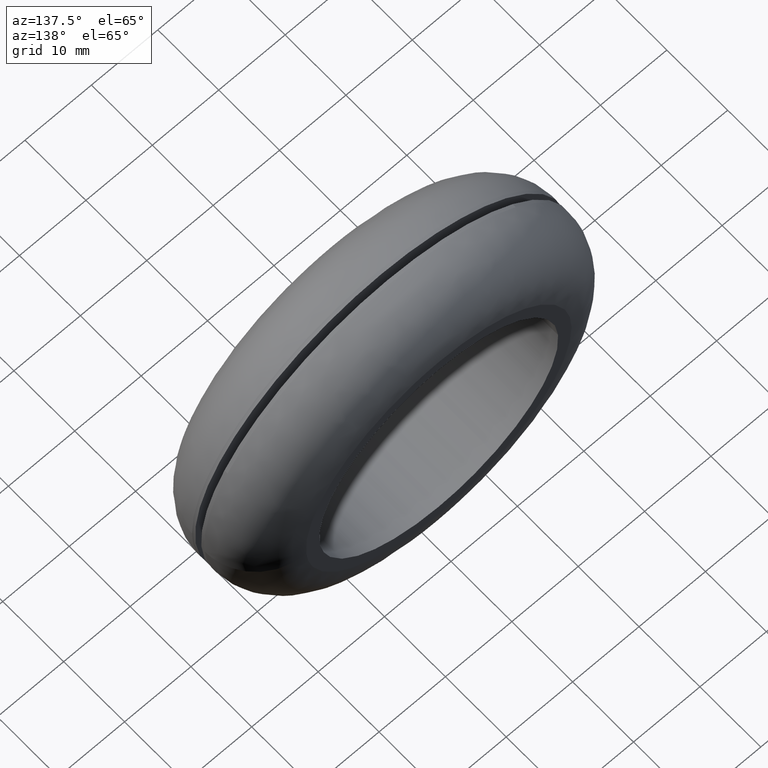
[diagram: clean part render]
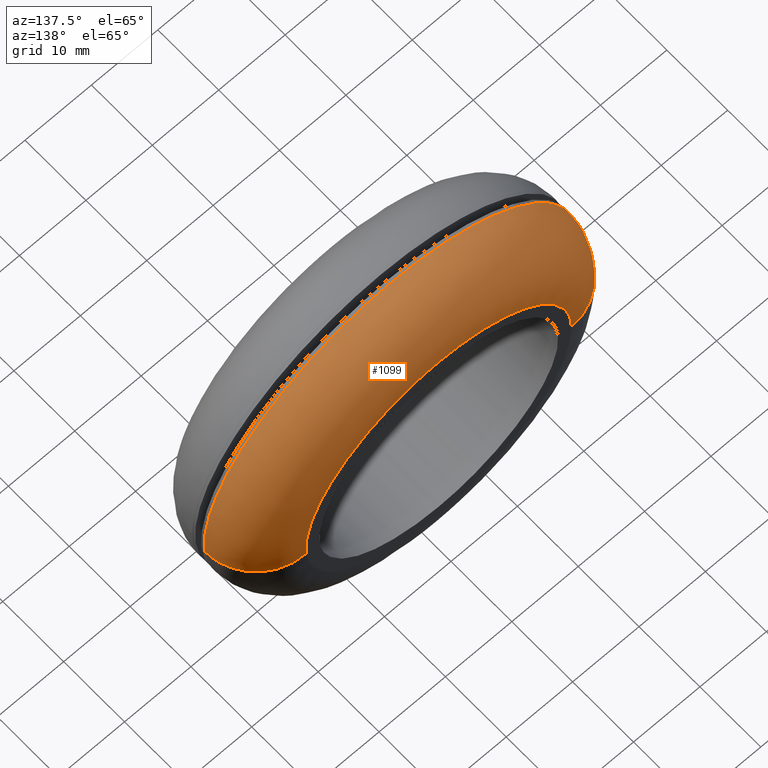
[diagram: same view with one face highlighted and labeled with its STEP entity id]
A machine part, auxiliary view. The second image highlights one B-rep face of the part: STEP entity #1099.
In plain terms, the highlighted face is a freeform B-spline surface patch.
Its self-contained STEP definition (entity closure, byte-faithful):
#464=CARTESIAN_POINT('',(24.498502475703919,9.999992431047673,13.558147972626561));
#465=VERTEX_POINT('',#464);
#466=CARTESIAN_POINT('',(0.0,10.0,28.0));
#467=VERTEX_POINT('',#466);
#468=CARTESIAN_POINT('',(24.498502475703926,9.999992431047673,13.558147972626557));
#469=CARTESIAN_POINT('',(16.505982648014054,9.999996875512034,28.000000000000320));
#470=CARTESIAN_POINT('',(0.0,10.0,28.0));
#478=(BOUNDED_CURVE()B_SPLINE_CURVE(2,(#468,#469,#470),.UNSPECIFIED.,.F.,.U.)B_SPLINE_CURVE_WITH_KNOTS((3,3),(0.332484260513067,0.500000000000000),.UNSPECIFIED.)CURVE()GEOMETRIC_REPRESENTATION_ITEM()RATIONAL_B_SPLINE_CURVE((0.870495160132629,0.803743103439025,1.0))REPRESENTATION_ITEM(''));
#479=EDGE_CURVE('',#465,#467,#478,.T.);
#481=CARTESIAN_POINT('',(-18.916524673993550,9.999994661897787,20.643766474604121));
#482=VERTEX_POINT('',#481);
#483=CARTESIAN_POINT('',(0.0,10.0,28.0));
#484=CARTESIAN_POINT('',(-10.888603602444862,9.999997779890196,27.999999999999947));
#485=CARTESIAN_POINT('',(-18.916524673993546,9.999994661897787,20.643766474604117));
#493=(BOUNDED_CURVE()B_SPLINE_CURVE(2,(#483,#484,#485),.UNSPECIFIED.,.F.,.U.)B_SPLINE_CURVE_WITH_KNOTS((3,3),(0.500000000000000,0.618415200753256),.UNSPECIFIED.)CURVE()GEOMETRIC_REPRESENTATION_ITEM()RATIONAL_B_SPLINE_CURVE((1.0,0.861267962779751,0.853959781866254))REPRESENTATION_ITEM(''));
#494=EDGE_CURVE('',#467,#482,#493,.T.);
#563=CARTESIAN_POINT('',(27.931839311277209,9.999988632645632,-1.952524695885787));
#564=VERTEX_POINT('',#563);
#565=CARTESIAN_POINT('',(27.931839311277212,9.999988632645632,-1.952524695885788));
#566=CARTESIAN_POINT('',(27.999999999983434,9.999988817671708,-0.977452058754858));
#567=CARTESIAN_POINT('',(27.999999999983729,9.999989016083207,1.137140E-012));
#568=CARTESIAN_POINT('',(27.999999999985899,9.999990483937195,7.231218517312033));
#569=CARTESIAN_POINT('',(24.498502475703926,9.999992431047673,13.558147972626557));
#577=(BOUNDED_CURVE()B_SPLINE_CURVE(2,(#565,#566,#567,#568,#569),.UNSPECIFIED.,.F.,.U.)B_SPLINE_CURVE_WITH_KNOTS((3,2,3),(0.237833725622559,0.250000000000000,0.332484260513067),.UNSPECIFIED.)CURVE()GEOMETRIC_REPRESENTATION_ITEM()RATIONAL_B_SPLINE_CURVE((0.972879959060353,0.985746322946495,1.0,0.903363677747522,0.870495160132629))REPRESENTATION_ITEM(''));
#578=EDGE_CURVE('',#564,#465,#577,.T.);
#614=CARTESIAN_POINT('',(-27.997789473912182,9.999988724574578,0.351830318831164));
#615=VERTEX_POINT('',#614);
#616=CARTESIAN_POINT('',(-18.916524673993546,9.999994661897787,20.643766474604117));
#617=CARTESIAN_POINT('',(-27.845611647233294,9.999991193900494,12.461766632005810));
#618=CARTESIAN_POINT('',(-27.997789473912178,9.999988724574578,0.351830318831164));
#626=(BOUNDED_CURVE()B_SPLINE_CURVE(2,(#616,#617,#618),.UNSPECIFIED.,.F.,.U.)B_SPLINE_CURVE_WITH_KNOTS((3,3),(0.618415200753256,0.747784414000057),.UNSPECIFIED.)CURVE()GEOMETRIC_REPRESENTATION_ITEM()RATIONAL_B_SPLINE_CURVE((0.853959781866254,0.845975556791852,0.994854567414644))REPRESENTATION_ITEM(''));
#627=EDGE_CURVE('',#482,#615,#626,.T.);
#1004=CARTESIAN_POINT('',(19.396369496455950,17.980634826789895,-1.355871474058523));
#1005=CARTESIAN_POINT('',(19.435173918076199,17.980634826789892,-0.800756247989376));
#1006=CARTESIAN_POINT('',(19.442166540443480,17.980634826789895,-0.244330331461837));
#1007=CARTESIAN_POINT('',(19.686496871905316,17.980634826789899,19.197836208981627));
#1008=CARTESIAN_POINT('',(0.244330331461838,17.980634826789895,19.442166540443480));
#1009=CARTESIAN_POINT('',(-19.197836208981627,17.980634826789899,19.686496871905316));
#1010=CARTESIAN_POINT('',(-19.442166540443480,17.980634826789895,0.244330331461840));
#1011=CARTESIAN_POINT('',(28.550639918953333,18.620299706625694,-1.995785770079217));
#1012=CARTESIAN_POINT('',(28.607758395127220,18.620299706625691,-1.178679510275058));
#1013=CARTESIAN_POINT('',(28.618051241081414,18.620299706625691,-0.359643969255176));
#1014=CARTESIAN_POINT('',(28.977695210336577,18.620299706625694,28.258407271826236));
#1015=CARTESIAN_POINT('',(0.359643969255177,18.620299706625691,28.618051241081414));
#1016=CARTESIAN_POINT('',(-28.258407271826236,18.620299706625694,28.977695210336577));
#1017=CARTESIAN_POINT('',(-28.618051241081414,18.620299706625691,0.359643969255179));
#1018=CARTESIAN_POINT('',(27.912520217374755,9.443691296079329,-1.951179056407197));
#1019=CARTESIAN_POINT('',(27.968362069799600,9.443691296079328,-1.152335490684303));
#1020=CARTESIAN_POINT('',(27.978424865996317,9.443691296079329,-0.351605764052521));
#1021=CARTESIAN_POINT('',(28.330030630048842,9.443691296079328,27.626819101943795));
#1022=CARTESIAN_POINT('',(0.351605764052523,9.443691296079329,27.978424865996317));
#1023=CARTESIAN_POINT('',(-27.626819101943795,9.443691296079328,28.330030630048842));
#1024=CARTESIAN_POINT('',(-27.978424865996317,9.443691296079329,0.351605764052525));
#1032=(BOUNDED_SURFACE()B_SPLINE_SURFACE(2,2,((#1004,#1011,#1018),(#1005,#1012,#1019),(#1006,#1013,#1020),(#1007,#1014,#1021),(#1008,#1015,#1022),(#1009,#1016,#1023),(#1010,#1017,#1024)),.UNSPECIFIED.,.F.,.F.,.U.)B_SPLINE_SURFACE_WITH_KNOTS((3,2,2,3),(3,3),(0.0,1.854391531945382,48.214224042761508,94.574056553577634),(0.0,14.579007301381450),.UNSPECIFIED.)GEOMETRIC_REPRESENTATION_ITEM()RATIONAL_B_SPLINE_SURFACE(((0.895729808500744,0.587799884252866,0.895730342212187),(0.905606566936954,0.594281255544188,0.905607106533363),(0.916342173042551,0.601326223754876,0.916342719035661),(0.647951764445604,0.425201850522372,0.647952150521035),(0.916342173042551,0.601326223754876,0.916342719035661),(0.647951764445604,0.425201850522372,0.647952150521035),(0.916342173042551,0.601326223754876,0.916342719035661)))REPRESENTATION_ITEM('')SURFACE());
#1033=ORIENTED_EDGE('',*,*,#479,.F.);
#1034=ORIENTED_EDGE('',*,*,#578,.F.);
#1035=CARTESIAN_POINT('',(19.951313477026670,18.0,-1.394665031562556));
#1036=VERTEX_POINT('',#1035);
#1037=CARTESIAN_POINT('',(19.951313477026677,18.0,-1.394665031562556));
#1038=CARTESIAN_POINT('',(27.931850428987570,17.999999999557520,-1.952528662693935));
#1039=CARTESIAN_POINT('',(27.931839311277209,9.999988632645632,-1.952524695885787));
#1047=(BOUNDED_CURVE()B_SPLINE_CURVE(2,(#1037,#1038,#1039),.UNSPECIFIED.,.F.,.U.)B_SPLINE_CURVE_WITH_KNOTS((3,3),(-1.734750791600929,-0.265247731871690),.UNSPECIFIED.)CURVE()GEOMETRIC_REPRESENTATION_ITEM()RATIONAL_B_SPLINE_CURVE((0.869031711855350,0.614497960802621,0.869032223356742))REPRESENTATION_ITEM(''));
#1048=EDGE_CURVE('',#1036,#564,#1047,.T.);
#1049=ORIENTED_EDGE('',*,*,#1048,.F.);
#1050=CARTESIAN_POINT('',(0.0,18.0,20.0));
#1051=VERTEX_POINT('',#1050);
#1052=CARTESIAN_POINT('',(19.951313477026673,18.000000000000004,-1.394665031562555));
#1053=CARTESIAN_POINT('',(20.0,18.0,-0.698182317532665));
#1054=CARTESIAN_POINT('',(20.0,18.0,-4.286122E-016));
#1055=CARTESIAN_POINT('',(19.999999999999996,18.000000000000007,19.999999999999996));
#1056=CARTESIAN_POINT('',(0.0,18.0,20.0));
#1064=(BOUNDED_CURVE()B_SPLINE_CURVE(2,(#1052,#1053,#1054,#1055,#1056),.UNSPECIFIED.,.F.,.U.)B_SPLINE_CURVE_WITH_KNOTS((3,2,3),(0.237833686534474,0.250000000000000,0.500000000000000),.UNSPECIFIED.)CURVE()GEOMETRIC_REPRESENTATION_ITEM()RATIONAL_B_SPLINE_CURVE((0.972879876385670,0.985746277151955,1.0,0.707106781186548,1.0))REPRESENTATION_ITEM(''));
#1065=EDGE_CURVE('',#1036,#1051,#1064,.T.);
#1066=ORIENTED_EDGE('',*,*,#1065,.T.);
#1067=CARTESIAN_POINT('',(-19.998420884129541,18.0,0.251320797672036));
#1068=VERTEX_POINT('',#1067);
#1069=CARTESIAN_POINT('',(0.0,18.0,20.0));
#1070=CARTESIAN_POINT('',(-19.750238598137660,18.0,20.0));
#1071=CARTESIAN_POINT('',(-19.998420884129533,18.0,0.251320797672036));
#1079=(BOUNDED_CURVE()B_SPLINE_CURVE(2,(#1069,#1070,#1071),.UNSPECIFIED.,.F.,.U.)B_SPLINE_CURVE_WITH_KNOTS((3,3),(0.500000000000000,0.747784295921651),.UNSPECIFIED.)CURVE()GEOMETRIC_REPRESENTATION_ITEM()RATIONAL_B_SPLINE_CURVE((1.0,0.709702639984330,0.994854295643836))REPRESENTATION_ITEM(''));
#1080=EDGE_CURVE('',#1051,#1068,#1079,.T.);
#1081=ORIENTED_EDGE('',*,*,#1080,.T.);
#1082=CARTESIAN_POINT('',(-19.998420884129533,18.000000000000007,0.251320797672036));
#1083=CARTESIAN_POINT('',(-27.997800630329927,17.999999999893454,0.351839859471933));
#1084=CARTESIAN_POINT('',(-27.997789473912182,9.999988724574578,0.351830318831164));
#1092=(BOUNDED_CURVE()B_SPLINE_CURVE(2,(#1082,#1083,#1084),.UNSPECIFIED.,.F.,.U.)B_SPLINE_CURVE_WITH_KNOTS((3,3),(-1.734750791644562,-0.265247743812055),.UNSPECIFIED.)CURVE()GEOMETRIC_REPRESENTATION_ITEM()RATIONAL_B_SPLINE_CURVE((0.889029723571537,0.628638686710008,0.889030242596456))REPRESENTATION_ITEM(''));
#1093=EDGE_CURVE('',#1068,#615,#1092,.T.);
#1094=ORIENTED_EDGE('',*,*,#1093,.T.);
#1095=ORIENTED_EDGE('',*,*,#627,.F.);
#1096=ORIENTED_EDGE('',*,*,#494,.F.);
#1097=EDGE_LOOP('',(#1033,#1034,#1049,#1066,#1081,#1094,#1095,#1096));
#1098=FACE_OUTER_BOUND('',#1097,.T.);
#1099=ADVANCED_FACE('',(#1098),#1032,.T.);